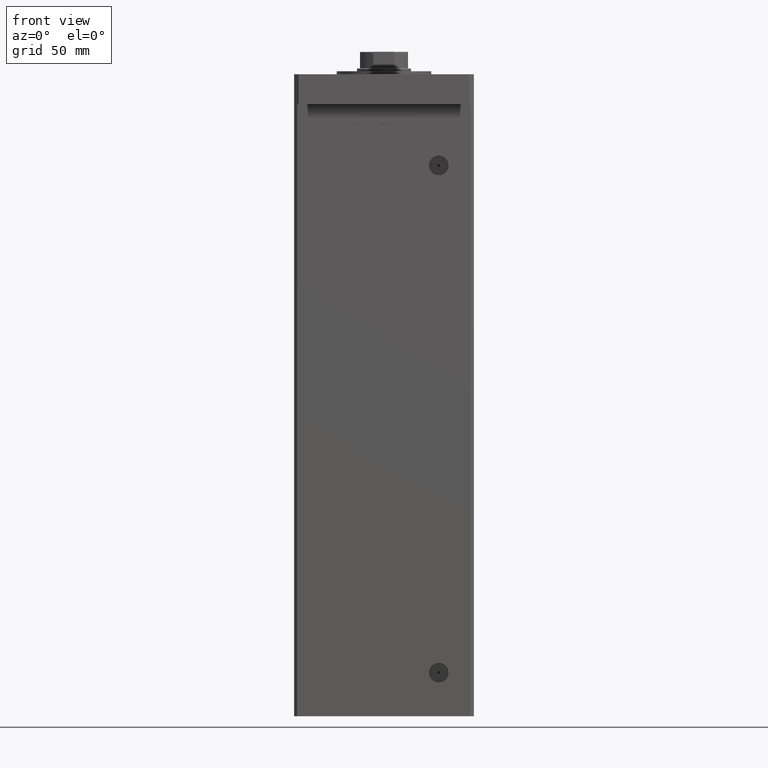
[diagram: clean part render]
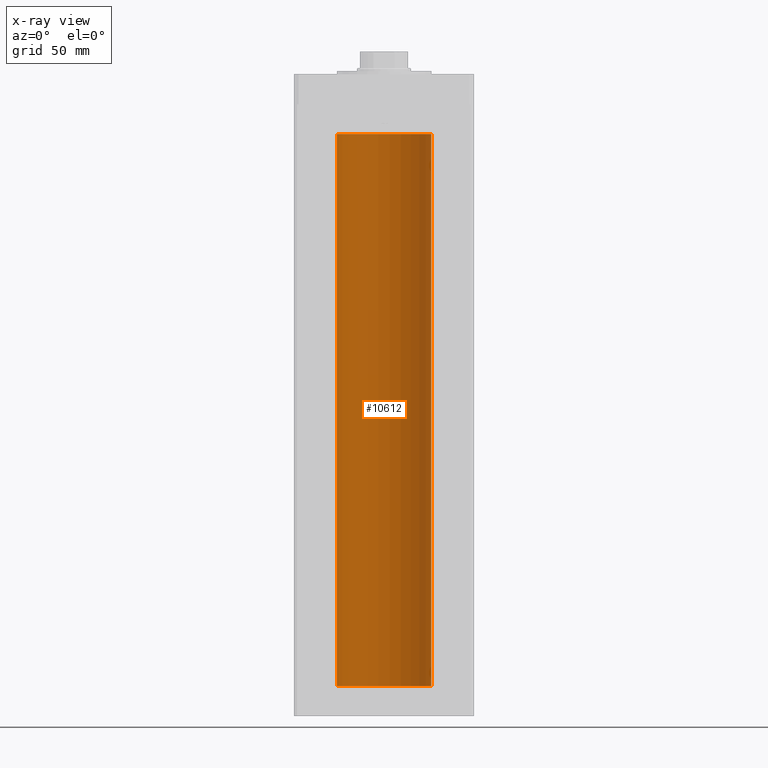
[diagram: x-ray — body ghosted, one internal face saturated and labeled with its STEP entity id]
A machine part, front view, then the same camera in x-ray: the body is ghosted and one INTERNAL B-rep face — a face not visible from any outside direction — is saturated and labeled: STEP entity #10612.
In plain terms, the highlighted cylindrical surface (partial cylindrical patch) has radius 31.5 mm, axis along (-0, -0, -1).
Its self-contained STEP definition (entity closure, byte-faithful):
#1094 = LINE ( 'NONE', #4373, #3477 ) ;
#1104 = DIRECTION ( 'NONE',  ( 1.000000000000000000, 0.000000000000000000, 0.000000000000000000 ) ) ;
#1284 = EDGE_CURVE ( 'NONE', #52696, #28403, #52826, .T. ) ;
#2703 = EDGE_CURVE ( 'NONE', #52696, #12762, #16162, .T. ) ;
#3324 = AXIS2_PLACEMENT_3D ( 'NONE', #45992, #41909, #1104 ) ;
#3477 = VECTOR ( 'NONE', #33457, 1000.000000000000000 ) ;
#4373 = CARTESIAN_POINT ( 'NONE',  ( -31.50000000000000000, 0.000000000000000000, 368.5000000000000000 ) ) ;
#7516 = CARTESIAN_POINT ( 'NONE',  ( 0.000000000000000000, 0.000000000000000000, 0.000000000000000000 ) ) ;
#7625 = EDGE_CURVE ( 'NONE', #28403, #39837, #1094, .T. ) ;
#8230 = ORIENTED_EDGE ( 'NONE', *, *, #7625, .T. ) ;
#8896 = CIRCLE ( 'NONE', #14959, 31.50000000000000000 ) ;
#9434 = VECTOR ( 'NONE', #44482, 1000.000000000000000 ) ;
#10612 = ADVANCED_FACE ( 'NONE', ( #22249 ), #45951, .F. ) ;
#12762 = VERTEX_POINT ( 'NONE', #37851 ) ;
#13300 = CARTESIAN_POINT ( 'NONE',  ( 0.000000000000000000, 0.000000000000000000, 368.5000000000000000 ) ) ;
#14302 = EDGE_CURVE ( 'NONE', #12762, #39837, #8896, .T. ) ;
#14959 = AXIS2_PLACEMENT_3D ( 'NONE', #7516, #16189, #33042 ) ;
#15053 = ORIENTED_EDGE ( 'NONE', *, *, #14302, .F. ) ;
#16162 = LINE ( 'NONE', #27870, #9434 ) ;
#16189 = DIRECTION ( 'NONE',  ( -0.000000000000000000, 0.000000000000000000, 1.000000000000000000 ) ) ;
#16402 = ORIENTED_EDGE ( 'NONE', *, *, #1284, .T. ) ;
#18367 = AXIS2_PLACEMENT_3D ( 'NONE', #13300, #21987, #46221 ) ;
#20661 = ORIENTED_EDGE ( 'NONE', *, *, #2703, .F. ) ;
#20677 = CARTESIAN_POINT ( 'NONE',  ( 31.50000000000000000, 3.857637417314162689E-15, 368.5000000000000000 ) ) ;
#21987 = DIRECTION ( 'NONE',  ( -0.000000000000000000, -0.000000000000000000, -1.000000000000000000 ) ) ;
#22249 = FACE_OUTER_BOUND ( 'NONE', #45763, .T. ) ;
#27870 = CARTESIAN_POINT ( 'NONE',  ( 31.50000000000000000, 3.857637417314162689E-15, 368.5000000000000000 ) ) ;
#28403 = VERTEX_POINT ( 'NONE', #34203 ) ;
#33042 = DIRECTION ( 'NONE',  ( 1.000000000000000000, 0.000000000000000000, 0.000000000000000000 ) ) ;
#33457 = DIRECTION ( 'NONE',  ( -0.000000000000000000, -0.000000000000000000, -1.000000000000000000 ) ) ;
#34203 = CARTESIAN_POINT ( 'NONE',  ( -31.50000000000000000, 0.000000000000000000, 368.5000000000000000 ) ) ;
#37851 = CARTESIAN_POINT ( 'NONE',  ( 31.50000000000000000, 3.857637417314162689E-15, 0.000000000000000000 ) ) ;
#39837 = VERTEX_POINT ( 'NONE', #50856 ) ;
#41909 = DIRECTION ( 'NONE',  ( -0.000000000000000000, 0.000000000000000000, 1.000000000000000000 ) ) ;
#44482 = DIRECTION ( 'NONE',  ( -0.000000000000000000, -0.000000000000000000, -1.000000000000000000 ) ) ;
#45763 = EDGE_LOOP ( 'NONE', ( #20661, #16402, #8230, #15053 ) ) ;
#45951 = CYLINDRICAL_SURFACE ( 'NONE', #18367, 31.50000000000000000 ) ;
#45992 = CARTESIAN_POINT ( 'NONE',  ( 0.000000000000000000, 0.000000000000000000, 368.5000000000000000 ) ) ;
#46221 = DIRECTION ( 'NONE',  ( -1.000000000000000000, 0.000000000000000000, 0.000000000000000000 ) ) ;
#50856 = CARTESIAN_POINT ( 'NONE',  ( -31.50000000000000000, 0.000000000000000000, 0.000000000000000000 ) ) ;
#52696 = VERTEX_POINT ( 'NONE', #20677 ) ;
#52826 = CIRCLE ( 'NONE', #3324, 31.50000000000000000 ) ;